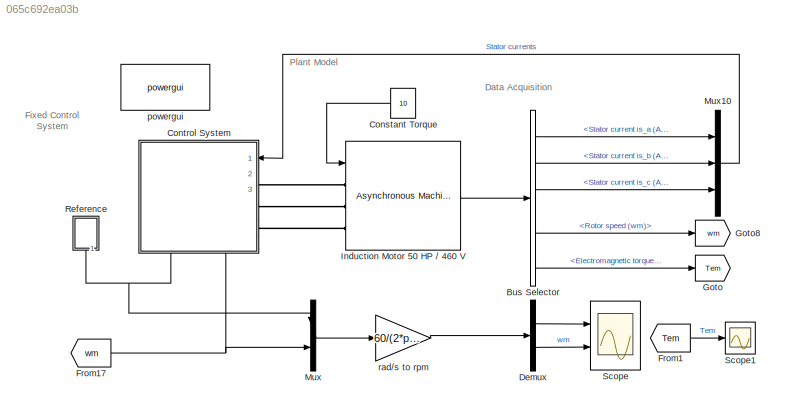
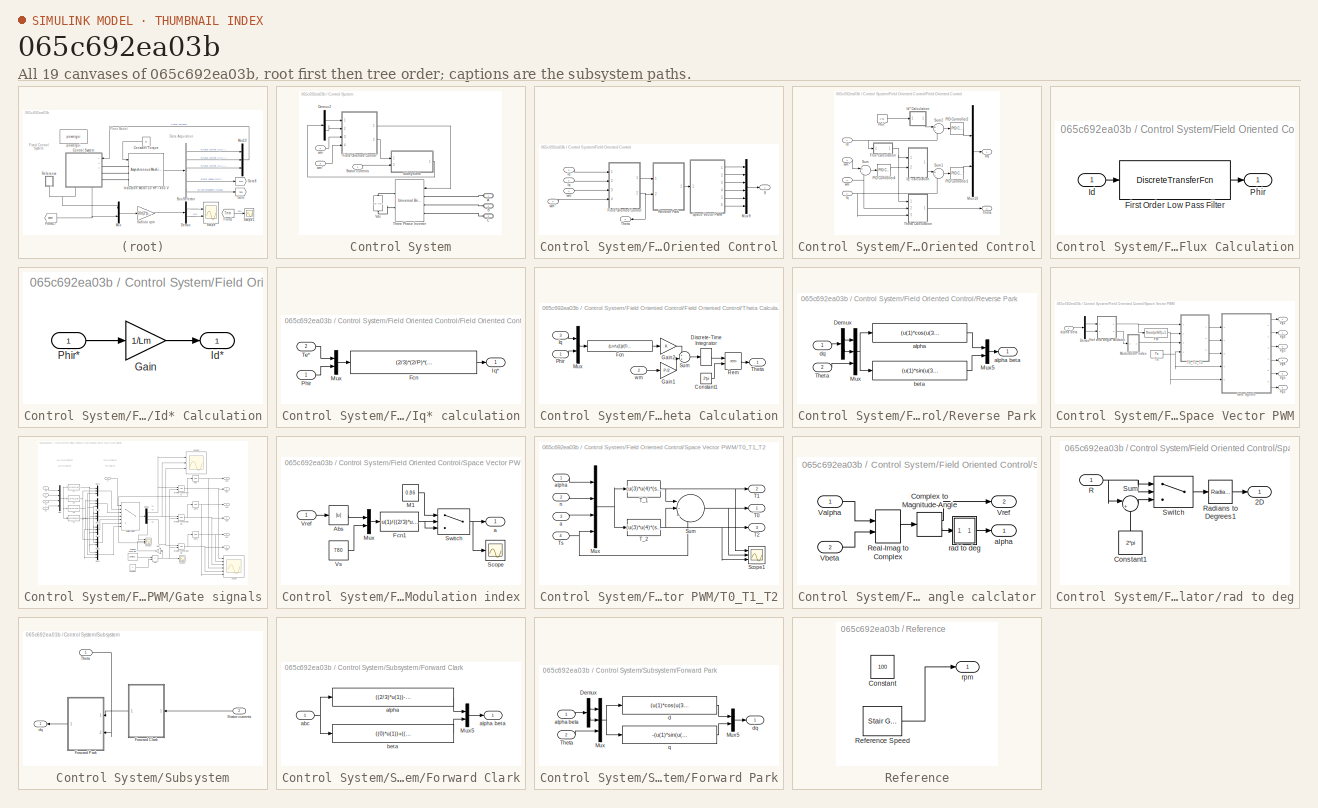
[diagram: thumbnail index - all 19 canvases of the model, root first then tree order]
MODEL slx_065c692ea03b
KIND model
CONFIG AbsTol = auto
CONFIG EnableMultiTasking = off
CONFIG FixedStep = auto
CONFIG InitFcn = Ts=0.00002;
CONFIG MaxStep = auto
CONFIG MinStep = auto
CONFIG RelTol = 1e-3
CONFIG SampleTimeConstraint = Unconstrained
CONFIG SolverName = FixedStepDiscrete
CONFIG StartTime = 0.0
CONFIG StopTime = 20
BLOCK [BusSelector] Bus Selector
  OutputSignals = Stator measurements.Stator current is_a (A),Stator measurements.Stator current is_b (A),Stator measurements.Stator current is_c (A),Mechanical.Rotor speed (wm),Mechanical.Electromagnetic torque Te (N*m)
  Ports = [1, 5]
BLOCK [Constant] Constant Torque
  Value = 10
BLOCK [SubSystem] Control System
  NameLocation = top
  PortSchema = {"entries":[{"content":{"sides":[{"content":{"connectorIds":["In1","LConn1","LConn2","LConn3"]},"type":"ConnectorPlacement.EquallySpacedRectSide","uuid":"4d0b9b2f-8e37-4bb7-83ab-892b613475e4"},{"content":{"connectorIds":[],"side":"RIGHT"},"type":"ConnectorPlacement.EquallySpacedRectSide","uuid":"bb2369a0-c7b6-4e92-ace2-61445e2cb3b9"},{"content":{"connectorIds":[],"side":"TOP"},"type":"ConnectorPla...<+416ch>
  Ports = [3, 0, 0, 0, 0, 3]
  RequestExecContextInheritance = off
BLOCK [PMIOPort] Control System/A
  Side = Left
BLOCK [PMIOPort] Control System/B
  Port = 2
  Side = Left
BLOCK [PMIOPort] Control System/C
  Port = 3
  Side = Left
BLOCK [Demux] Control System/Demux2
  NameLocation = top
  Outputs = 2
  Ports = [1, 2]
BLOCK [SubSystem] Control System/Field Oriented Control
  Ports = [4, 2]
  RequestExecContextInheritance = off
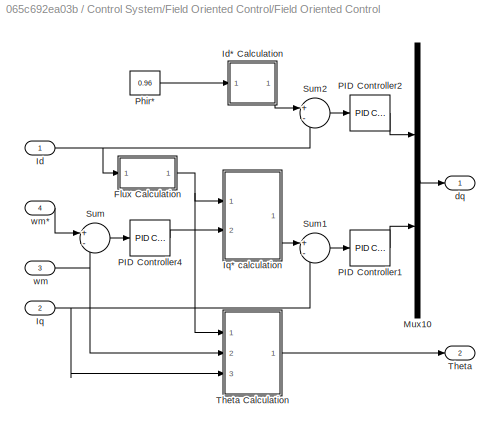
BLOCK [SubSystem] Control System/Field Oriented Control/Field Oriented Control
  Ports = [4, 2]
  RequestExecContextInheritance = off
BLOCK [SubSystem] Control System/Field Oriented Control/Field Oriented Control/Flux Calculation
  Ports = [1, 1]
  RequestExecContextInheritance = off
BLOCK [DiscreteTransferFcn] Control System/Field Oriented Control/Field Oriented Control/Flux Calculation/First Order Low Pass Filter
  Denominator = [1 (Ts-Tr)/Tr]
  InputPortMap = u0
  Numerator = [Lm*Ts/Tr]
  Ports = [1, 1]
BLOCK [Inport] Control System/Field Oriented Control/Field Oriented Control/Flux Calculation/Id
BLOCK [Outport] Control System/Field Oriented Control/Field Oriented Control/Flux Calculation/Phir
  VectorParamsAs1DForOutWhenUnconnected = off
BLOCK [Inport] Control System/Field Oriented Control/Field Oriented Control/Id
BLOCK [SubSystem] Control System/Field Oriented Control/Field Oriented Control/Id* Calculation
  Ports = [1, 1]
  RequestExecContextInheritance = off
BLOCK [Gain] Control System/Field Oriented Control/Field Oriented Control/Id* Calculation/Gain
  Gain = 1/Lm
  OutDataTypeStr = Inherit: Same as input
  ParamDataTypeStr = Inherit: Same as input
  SaturateOnIntegerOverflow = on
BLOCK [Outport] Control System/Field Oriented Control/Field Oriented Control/Id* Calculation/Id*
  VectorParamsAs1DForOutWhenUnconnected = off
BLOCK [Inport] Control System/Field Oriented Control/Field Oriented Control/Id* Calculation/Phir*
BLOCK [Inport] Control System/Field Oriented Control/Field Oriented Control/Iq
  Port = 2
BLOCK [SubSystem] Control System/Field Oriented Control/Field Oriented Control/Iq* calculation
  Ports = [2, 1]
  RequestExecContextInheritance = off
BLOCK [Fcn] Control System/Field Oriented Control/Field Oriented Control/Iq* calculation/Fcn
  Expr = (2/3)*(2/P)*((Llr+Lm)/Lm)*(u(1)/(u(2)+1e-3))
BLOCK [Outport] Control System/Field Oriented Control/Field Oriented Control/Iq* calculation/Iq*
  InitialOutput = 0
  VectorParamsAs1DForOutWhenUnconnected = off
BLOCK [Mux] Control System/Field Oriented Control/Field Oriented Control/Iq* calculation/Mux
  DisplayOption = bar
  Inputs = 2
  Ports = [2, 1]
BLOCK [Inport] Control System/Field Oriented Control/Field Oriented Control/Iq* calculation/Phir
BLOCK [Inport] Control System/Field Oriented Control/Field Oriented Control/Iq* calculation/Te*
  Port = 2
BLOCK [Mux] Control System/Field Oriented Control/Field Oriented Control/Mux10
  DisplayOption = bar
  Inputs = 2
  Ports = [2, 1]
BLOCK [Reference] Control System/Field Oriented Control/Field Oriented Control/PID Controller1  REF=slpidlib/PID Controller
  Ports = [1, 1]
  SourceBlock = slpidlib/PID Controller
  SourceProductBaseCode = SL
  SourceType = PID 1dof
BLOCK [Reference] Control System/Field Oriented Control/Field Oriented Control/PID Controller2  REF=slpidlib/PID Controller
  Ports = [1, 1]
  SourceBlock = slpidlib/PID Controller
  SourceProductBaseCode = SL
  SourceType = PID 1dof
BLOCK [Reference] Control System/Field Oriented Control/Field Oriented Control/PID Controller4  REF=slpidlib/PID Controller
  Ports = [1, 1]
  SourceBlock = slpidlib/PID Controller
  SourceProductBaseCode = SL
  SourceType = PID 1dof
BLOCK [Constant] Control System/Field Oriented Control/Field Oriented Control/Phir*
  Value = 0.96
BLOCK [Sum] Control System/Field Oriented Control/Field Oriented Control/Sum
  Inputs = +-
  Ports = [2, 1]
BLOCK [Sum] Control System/Field Oriented Control/Field Oriented Control/Sum1
  Inputs = +-
  Ports = [2, 1]
BLOCK [Sum] Control System/Field Oriented Control/Field Oriented Control/Sum2
  Inputs = +-
  Ports = [2, 1]
BLOCK [Outport] Control System/Field Oriented Control/Field Oriented Control/Theta
  Port = 2
  VectorParamsAs1DForOutWhenUnconnected = off
BLOCK [SubSystem] Control System/Field Oriented Control/Field Oriented Control/Theta Calculation
  Ports = [3, 1]
  RequestExecContextInheritance = off
BLOCK [Constant] Control System/Field Oriented Control/Field Oriented Control/Theta Calculation/Constant1
  Value = 2*pi
BLOCK [DiscreteIntegrator] Control System/Field Oriented Control/Field Oriented Control/Theta Calculation/Discrete-Time Integrator
  ICPrevOutput = DiscIntNeverNeededParam
  ICPrevScaledInput = DiscIntNeverNeededParam
  Ports = [1, 1]
  SampleTime = Ts
BLOCK [Fcn] Control System/Field Oriented Control/Field Oriented Control/Theta Calculation/Fcn
  Expr = (Lm*u(1))/(Tr*(u(2)+1e-3))
BLOCK [Gain] Control System/Field Oriented Control/Field Oriented Control/Theta Calculation/Gain1
  Gain = P/2
  OutDataTypeStr = Inherit: Same as input
  ParamDataTypeStr = Inherit: Same as input
  SaturateOnIntegerOverflow = on
BLOCK [Gain] Control System/Field Oriented Control/Field Oriented Control/Theta Calculation/Gain2
  OutDataTypeStr = Inherit: Same as input
  ParamDataTypeStr = Inherit: Same as input
  SaturateOnIntegerOverflow = on
BLOCK [Inport] Control System/Field Oriented Control/Field Oriented Control/Theta Calculation/Iq
  Port = 3
BLOCK [Mux] Control System/Field Oriented Control/Field Oriented Control/Theta Calculation/Mux
  DisplayOption = bar
  Inputs = 2
  Ports = [2, 1]
BLOCK [Inport] Control System/Field Oriented Control/Field Oriented Control/Theta Calculation/Phir
BLOCK [Math] Control System/Field Oriented Control/Field Oriented Control/Theta Calculation/Rem
  Operator = rem
  Ports = [2, 1]
  SignedPower = on
BLOCK [Sum] Control System/Field Oriented Control/Field Oriented Control/Theta Calculation/Sum
  Ports = [2, 1]
BLOCK [Outport] Control System/Field Oriented Control/Field Oriented Control/Theta Calculation/Theta
  InitialOutput = 0
  VectorParamsAs1DForOutWhenUnconnected = off
BLOCK [Inport] Control System/Field Oriented Control/Field Oriented Control/Theta Calculation/wm
  Port = 2
BLOCK [Outport] Control System/Field Oriented Control/Field Oriented Control/dq
  VectorParamsAs1DForOutWhenUnconnected = off
BLOCK [Inport] Control System/Field Oriented Control/Field Oriented Control/wm
  Port = 3
BLOCK [Inport] Control System/Field Oriented Control/Field Oriented Control/wm*
  Port = 4
BLOCK [Inport] Control System/Field Oriented Control/Id
BLOCK [Inport] Control System/Field Oriented Control/Iq
  Port = 2
BLOCK [Mux] Control System/Field Oriented Control/Mux9
  DisplayOption = bar
  Inputs = 6
  Ports = [6, 1]
BLOCK [SubSystem] Control System/Field Oriented Control/Reverse Park
  Ports = [2, 1]
  RequestExecContextInheritance = off
BLOCK [Demux] Control System/Field Oriented Control/Reverse Park/Demux
  Outputs = 2
  Ports = [1, 2]
BLOCK [Mux] Control System/Field Oriented Control/Reverse Park/Mux
  DisplayOption = bar
  Inputs = 3
  Ports = [3, 1]
BLOCK [Mux] Control System/Field Oriented Control/Reverse Park/Mux5
  DisplayOption = bar
  Inputs = 2
  Ports = [2, 1]
BLOCK [Inport] Control System/Field Oriented Control/Reverse Park/Theta
  Port = 2
BLOCK [Fcn] Control System/Field Oriented Control/Reverse Park/alpha
  Expr = (u(1)*cos(u(3)))-(u(2)*sin(u(3)))
BLOCK [Outport] Control System/Field Oriented Control/Reverse Park/alpha beta
  VectorParamsAs1DForOutWhenUnconnected = off
BLOCK [Fcn] Control System/Field Oriented Control/Reverse Park/beta
  Expr = (u(1)*sin(u(3)))+(u(2)*cos(u(3)))
BLOCK [Inport] Control System/Field Oriented Control/Reverse Park/dq
BLOCK [SubSystem] Control System/Field Oriented Control/Space Vector PWM
  Ports = [1, 6]
  RequestExecContextInheritance = off
BLOCK [Demux] Control System/Field Oriented Control/Space Vector PWM/Demux
  Outputs = 2
  Ports = [1, 2]
BLOCK [Fcn] Control System/Field Oriented Control/Space Vector PWM/Fcn
  Expr = floor(u/60)+1
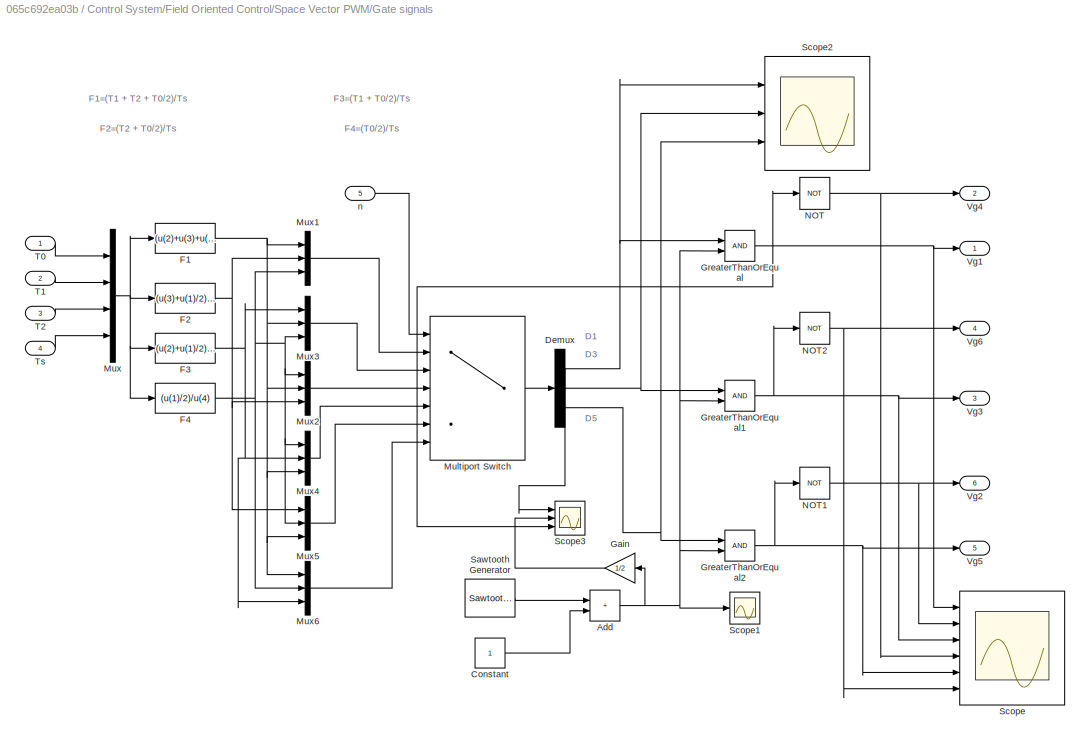
BLOCK [SubSystem] Control System/Field Oriented Control/Space Vector PWM/Gate signals
  Ports = [5, 6]
  RequestExecContextInheritance = off
BLOCK [Sum] Control System/Field Oriented Control/Space Vector PWM/Gate signals/Add
  IconShape = rectangular
  Ports = [2, 1]
BLOCK [Constant] Control System/Field Oriented Control/Space Vector PWM/Gate signals/Constant
BLOCK [Demux] Control System/Field Oriented Control/Space Vector PWM/Gate signals/Demux
  Outputs = 3
  Ports = [1, 3]
BLOCK [Fcn] Control System/Field Oriented Control/Space Vector PWM/Gate signals/F1
  Expr = (u(2)+u(3)+u(1)/2)/u(4)
BLOCK [Fcn] Control System/Field Oriented Control/Space Vector PWM/Gate signals/F2
  Expr = (u(3)+u(1)/2)/u(4)
BLOCK [Fcn] Control System/Field Oriented Control/Space Vector PWM/Gate signals/F3
  Expr = (u(2)+u(1)/2)/u(4)
BLOCK [Fcn] Control System/Field Oriented Control/Space Vector PWM/Gate signals/F4
  Expr = (u(1)/2)/u(4)
BLOCK [Gain] Control System/Field Oriented Control/Space Vector PWM/Gate signals/Gain
  Gain = 1/2
  NameLocation = top
BLOCK [RelationalOperator] Control System/Field Oriented Control/Space Vector PWM/Gate signals/GreaterThanOrEqual
  InputSameDT = off
  OutDataTypeStr = boolean
  Ports = [2, 1]
  RndMeth = Simplest
BLOCK [RelationalOperator] Control System/Field Oriented Control/Space Vector PWM/Gate signals/GreaterThanOrEqual1
  InputSameDT = off
  OutDataTypeStr = boolean
  Ports = [2, 1]
  RndMeth = Simplest
BLOCK [RelationalOperator] Control System/Field Oriented Control/Space Vector PWM/Gate signals/GreaterThanOrEqual2
  InputSameDT = off
  OutDataTypeStr = boolean
  Ports = [2, 1]
  RndMeth = Simplest
BLOCK [MultiPortSwitch] Control System/Field Oriented Control/Space Vector PWM/Gate signals/Multiport Switch
  DiagnosticForDefault = None
  InputSameDT = off
  Inputs = 6
  Ports = [7, 1]
  SaturateOnIntegerOverflow = off
BLOCK [Mux] Control System/Field Oriented Control/Space Vector PWM/Gate signals/Mux
  DisplayOption = bar
  Ports = [4, 1]
BLOCK [Mux] Control System/Field Oriented Control/Space Vector PWM/Gate signals/Mux1
  DisplayOption = bar
  Inputs = 3
  Ports = [3, 1]
BLOCK [Mux] Control System/Field Oriented Control/Space Vector PWM/Gate signals/Mux2
  DisplayOption = bar
  Inputs = 3
  Ports = [3, 1]
BLOCK [Mux] Control System/Field Oriented Control/Space Vector PWM/Gate signals/Mux3
  DisplayOption = bar
  Inputs = 3
  Ports = [3, 1]
BLOCK [Mux] Control System/Field Oriented Control/Space Vector PWM/Gate signals/Mux4
  DisplayOption = bar
  Inputs = 3
  Ports = [3, 1]
BLOCK [Mux] Control System/Field Oriented Control/Space Vector PWM/Gate signals/Mux5
  DisplayOption = bar
  Inputs = 3
  Ports = [3, 1]
BLOCK [Mux] Control System/Field Oriented Control/Space Vector PWM/Gate signals/Mux6
  DisplayOption = bar
  Inputs = 3
  Ports = [3, 1]
BLOCK [Logic] Control System/Field Oriented Control/Space Vector PWM/Gate signals/NOT
  AllPortsSameDT = off
  IconShape = distinctive
  Operator = NOT
  OutDataTypeStr = boolean
  Ports = [1, 1]
BLOCK [Logic] Control System/Field Oriented Control/Space Vector PWM/Gate signals/NOT1
  AllPortsSameDT = off
  IconShape = distinctive
  Operator = NOT
  OutDataTypeStr = boolean
  Ports = [1, 1]
BLOCK [Logic] Control System/Field Oriented Control/Space Vector PWM/Gate signals/NOT2
  AllPortsSameDT = off
  IconShape = distinctive
  Operator = NOT
  OutDataTypeStr = boolean
  Ports = [1, 1]
BLOCK [Reference] Control System/Field Oriented Control/Space Vector PWM/Gate signals/Sawtooth Generator  REF=spsSawtoothGeneratorLib/Sawtooth
Generator
  Ports = [0, 1]
  SourceBlock = spsSawtoothGeneratorLib/Sawtooth\nGenerator
  SourceProductBaseCode = PS
  SourceType = Sawtooth Generator
BLOCK [Scope] Control System/Field Oriented Control/Space Vector PWM/Gate signals/Scope
  Floating = off
  NumInputPorts = 6
  Ports = [6]
  ScopeSpecificationString = Simulink.scopes.TimeScopeBlockCfg('CurrentConfiguration', extmgr.ConfigurationSet(extmgr.Configuration('Core','General UI',true),extmgr.Configuration('Core','Source UI',true),extmgr.Configuration('Sources','WiredSimulink',true,'DataLoggingVariableName','ScopeData1'),extmgr.Configuration('Visuals','Time Domain',true,'SerializedDisplays',{struct('MinYLimReal','-0.125','MaxYLimReal','1.03051','YLabel...<+5030ch>
BLOCK [Scope] Control System/Field Oriented Control/Space Vector PWM/Gate signals/Scope1
  Floating = off
  NumInputPorts = 1
  Ports = [1]
  ScopeSpecificationString = Simulink.scopes.TimeScopeBlockCfg('CurrentConfiguration', extmgr.ConfigurationSet(extmgr.Configuration('Core','General UI',true),extmgr.Configuration('Core','Source UI',true),extmgr.Configuration('Sources','WiredSimulink',true,'DataLoggingVariableName','ScopeData1'),extmgr.Configuration('Visuals','Time Domain',true,'SerializedDisplays',{struct('MinYLimReal','-0.1022','MaxYLimReal','2.0514','YLabel...<+1402ch>
BLOCK [Scope] Control System/Field Oriented Control/Space Vector PWM/Gate signals/Scope2
  Floating = off
  NumInputPorts = 3
  Ports = [3]
  ScopeSpecificationString = Simulink.scopes.TimeScopeBlockCfg('CurrentConfiguration', extmgr.ConfigurationSet(extmgr.Configuration('Core','General UI',true),extmgr.Configuration('Core','Source UI',true),extmgr.Configuration('Sources','WiredSimulink',true,'DataLoggingVariableName','ScopeData1'),extmgr.Configuration('Visuals','Time Domain',true,'SerializedDisplays',{struct('MinYLimReal','-0.12489','MaxYLimReal','1.12482','YLab...<+2919ch>
BLOCK [Scope] Control System/Field Oriented Control/Space Vector PWM/Gate signals/Scope3
  Floating = off
  NumInputPorts = 3
  Ports = [3]
  ScopeSpecificationString = Simulink.scopes.TimeScopeBlockCfg('CurrentConfiguration', extmgr.ConfigurationSet(extmgr.Configuration('Core','General UI',true),extmgr.Configuration('Core','Source UI',true),extmgr.Configuration('Sources','WiredSimulink',true,'DataLoggingVariableName','ScopeData1'),extmgr.Configuration('Visuals','Time Domain',true,'SerializedDisplays',{struct('MinYLimReal','-0.04819','MaxYLimReal','1.01031','YLab...<+1531ch>
BLOCK [Inport] Control System/Field Oriented Control/Space Vector PWM/Gate signals/T0
BLOCK [Inport] Control System/Field Oriented Control/Space Vector PWM/Gate signals/T1
  Port = 2
BLOCK [Inport] Control System/Field Oriented Control/Space Vector PWM/Gate signals/T2
  Port = 3
BLOCK [Inport] Control System/Field Oriented Control/Space Vector PWM/Gate signals/Ts
  Port = 4
BLOCK [Outport] Control System/Field Oriented Control/Space Vector PWM/Gate signals/Vg1
  VectorParamsAs1DForOutWhenUnconnected = off
BLOCK [Outport] Control System/Field Oriented Control/Space Vector PWM/Gate signals/Vg2
  Port = 6
  VectorParamsAs1DForOutWhenUnconnected = off
BLOCK [Outport] Control System/Field Oriented Control/Space Vector PWM/Gate signals/Vg3
  Port = 3
  VectorParamsAs1DForOutWhenUnconnected = off
BLOCK [Outport] Control System/Field Oriented Control/Space Vector PWM/Gate signals/Vg4
  Port = 2
  VectorParamsAs1DForOutWhenUnconnected = off
BLOCK [Outport] Control System/Field Oriented Control/Space Vector PWM/Gate signals/Vg5
  Port = 5
  VectorParamsAs1DForOutWhenUnconnected = off
BLOCK [Outport] Control System/Field Oriented Control/Space Vector PWM/Gate signals/Vg6
  Port = 4
  VectorParamsAs1DForOutWhenUnconnected = off
BLOCK [Inport] Control System/Field Oriented Control/Space Vector PWM/Gate signals/n
  Port = 5
BLOCK [SubSystem] Control System/Field Oriented Control/Space Vector PWM/Modulation index
  Ports = [1, 1]
  RequestExecContextInheritance = off
BLOCK [Abs] Control System/Field Oriented Control/Space Vector PWM/Modulation index/Abs
  SaturateOnIntegerOverflow = off
BLOCK [Fcn] Control System/Field Oriented Control/Space Vector PWM/Modulation index/Fcn1
  Expr = u(1)/((2/3)*u(2))
BLOCK [Constant] Control System/Field Oriented Control/Space Vector PWM/Modulation index/M1
  Value = 0.86
BLOCK [Mux] Control System/Field Oriented Control/Space Vector PWM/Modulation index/Mux
  DisplayOption = bar
  Inputs = 2
  Ports = [2, 1]
BLOCK [Scope] Control System/Field Oriented Control/Space Vector PWM/Modulation index/Scope
  Floating = off
  NumInputPorts = 1
  Ports = [1]
  ScopeSpecificationString = Simulink.scopes.TimeScopeBlockCfg('CurrentConfiguration', extmgr.ConfigurationSet(extmgr.Configuration('Core','General UI',true),extmgr.Configuration('Core','Source UI',true),extmgr.Configuration('Sources','WiredSimulink',true,'DataLoggingVariableName','ScopeData7'),extmgr.Configuration('Visuals','Time Domain',true,'SerializedDisplays',{struct('MinYLimReal','0.86504','MaxYLimReal','0.86623','YLabe...<+1409ch>
BLOCK [Switch] Control System/Field Oriented Control/Space Vector PWM/Modulation index/Switch
  InputSameDT = off
  SaturateOnIntegerOverflow = off
  Threshold = 0.866
BLOCK [Inport] Control System/Field Oriented Control/Space Vector PWM/Modulation index/Vref
BLOCK [Constant] Control System/Field Oriented Control/Space Vector PWM/Modulation index/Vs
  Value = 780
BLOCK [Outport] Control System/Field Oriented Control/Space Vector PWM/Modulation index/a
  VectorParamsAs1DForOutWhenUnconnected = off
BLOCK [SubSystem] Control System/Field Oriented Control/Space Vector PWM/T0_T1_T2
  Ports = [4, 3]
  RequestExecContextInheritance = off
BLOCK [Mux] Control System/Field Oriented Control/Space Vector PWM/T0_T1_T2/Mux
  DisplayOption = bar
  Ports = [4, 1]
BLOCK [Scope] Control System/Field Oriented Control/Space Vector PWM/T0_T1_T2/Scope1
  Floating = off
  NumInputPorts = 3
  Ports = [3]
  ScopeSpecificationString = Simulink.scopes.TimeScopeBlockCfg('CurrentConfiguration', extmgr.ConfigurationSet(extmgr.Configuration('Core','General UI',true),extmgr.Configuration('Core','Source UI',true),extmgr.Configuration('Sources','WiredSimulink',true,'DataLoggingVariableName','ScopeData2'),extmgr.Configuration('Visuals','Time Domain',true,'SerializedDisplays',{struct('MinYLimReal','-0.0000002','MaxYLimReal','0.0000022','...<+1956ch>
BLOCK [Sum] Control System/Field Oriented Control/Space Vector PWM/T0_T1_T2/Sum
  Inputs = |--+
  Ports = [3, 1]
BLOCK [Outport] Control System/Field Oriented Control/Space Vector PWM/T0_T1_T2/T0
  VectorParamsAs1DForOutWhenUnconnected = off
BLOCK [Outport] Control System/Field Oriented Control/Space Vector PWM/T0_T1_T2/T1
  Port = 2
  VectorParamsAs1DForOutWhenUnconnected = off
BLOCK [Outport] Control System/Field Oriented Control/Space Vector PWM/T0_T1_T2/T2
  Port = 3
  VectorParamsAs1DForOutWhenUnconnected = off
BLOCK [Fcn] Control System/Field Oriented Control/Space Vector PWM/T0_T1_T2/T_1
  Expr = (u(3)*u(4)*(sin((u(2)*pi/3)-u(1)*pi/180)))/(sin(pi/3))
BLOCK [Fcn] Control System/Field Oriented Control/Space Vector PWM/T0_T1_T2/T_2
  Expr = (u(3)*u(4)*(sin(u(1)*pi/180-((u(2)-1)*pi/3))))/(sin(pi/3))
BLOCK [Inport] Control System/Field Oriented Control/Space Vector PWM/T0_T1_T2/Ts
  Port = 4
BLOCK [Inport] Control System/Field Oriented Control/Space Vector PWM/T0_T1_T2/a
  Port = 3
BLOCK [Inport] Control System/Field Oriented Control/Space Vector PWM/T0_T1_T2/alpha
BLOCK [Inport] Control System/Field Oriented Control/Space Vector PWM/T0_T1_T2/n
  Port = 2
BLOCK [Constant] Control System/Field Oriented Control/Space Vector PWM/Ts
  Value = Ts
BLOCK [Outport] Control System/Field Oriented Control/Space Vector PWM/Vg1
  VectorParamsAs1DForOutWhenUnconnected = off
BLOCK [Outport] Control System/Field Oriented Control/Space Vector PWM/Vg2
  Port = 6
  VectorParamsAs1DForOutWhenUnconnected = off
BLOCK [Outport] Control System/Field Oriented Control/Space Vector PWM/Vg3
  Port = 3
  VectorParamsAs1DForOutWhenUnconnected = off
BLOCK [Outport] Control System/Field Oriented Control/Space Vector PWM/Vg4
  Port = 2
  VectorParamsAs1DForOutWhenUnconnected = off
BLOCK [Outport] Control System/Field Oriented Control/Space Vector PWM/Vg5
  Port = 5
  VectorParamsAs1DForOutWhenUnconnected = off
BLOCK [Outport] Control System/Field Oriented Control/Space Vector PWM/Vg6
  Port = 4
  VectorParamsAs1DForOutWhenUnconnected = off
BLOCK [SubSystem] Control System/Field Oriented Control/Space Vector PWM/Vref and angle calclator
  Ports = [2, 2]
  RequestExecContextInheritance = off
BLOCK [ComplexToMagnitudeAngle] Control System/Field Oriented Control/Space Vector PWM/Vref and angle calclator/Complex to Magnitude-Angle
  Ports = [1, 2]
BLOCK [RealImagToComplex] Control System/Field Oriented Control/Space Vector PWM/Vref and angle calclator/Real-Imag to Complex
  Ports = [2, 1]
BLOCK [Inport] Control System/Field Oriented Control/Space Vector PWM/Vref and angle calclator/Valpha
BLOCK [Inport] Control System/Field Oriented Control/Space Vector PWM/Vref and angle calclator/Vbeta
  Port = 2
BLOCK [Outport] Control System/Field Oriented Control/Space Vector PWM/Vref and angle calclator/Vref
  Port = 2
  VectorParamsAs1DForOutWhenUnconnected = off
BLOCK [Outport] Control System/Field Oriented Control/Space Vector PWM/Vref and angle calclator/alpha
  VectorParamsAs1DForOutWhenUnconnected = off
BLOCK [SubSystem] Control System/Field Oriented Control/Space Vector PWM/Vref and angle calclator/rad to deg
  Ports = [1, 1]
  RequestExecContextInheritance = off
BLOCK [Outport] Control System/Field Oriented Control/Space Vector PWM/Vref and angle calclator/rad to deg/2D
  VectorParamsAs1DForOutWhenUnconnected = off
BLOCK [Constant] Control System/Field Oriented Control/Space Vector PWM/Vref and angle calclator/rad to deg/Constant1
  NameLocation = right
  Value = 2*pi
BLOCK [Inport] Control System/Field Oriented Control/Space Vector PWM/Vref and angle calclator/rad to deg/R
BLOCK [Reference] Control System/Field Oriented Control/Space Vector PWM/Vref and angle calclator/rad to deg/Radians to Degrees1  REF=simulink_extras/Transformations/Radians
to Degrees
  Ports = [1, 1]
  SourceBlock = simulink_extras/Transformations/Radians\nto Degrees
  SourceProductBaseCode = SL
  SourceType = RadiansToDegrees
BLOCK [Sum] Control System/Field Oriented Control/Space Vector PWM/Vref and angle calclator/rad to deg/Sum
  Inputs = |++
  Ports = [2, 1]
BLOCK [Switch] Control System/Field Oriented Control/Space Vector PWM/Vref and angle calclator/rad to deg/Switch
  InputSameDT = off
  SaturateOnIntegerOverflow = off
BLOCK [Inport] Control System/Field Oriented Control/Space Vector PWM/alpha beta
BLOCK [Outport] Control System/Field Oriented Control/Theta
  Port = 2
BLOCK [Outport] Control System/Field Oriented Control/g
  NameLocation = top
BLOCK [Inport] Control System/Field Oriented Control/wm
  Port = 3
BLOCK [Inport] Control System/Field Oriented Control/wm*
  Port = 4
BLOCK [Inport] Control System/Stator currents
BLOCK [SubSystem] Control System/Subsystem
  Ports = [2, 1]
  RequestExecContextInheritance = off
BLOCK [SubSystem] Control System/Subsystem/Forward Clark
  Ports = [1, 1]
  RequestExecContextInheritance = off
BLOCK [Mux] Control System/Subsystem/Forward Clark/Mux5
  DisplayOption = bar
  Inputs = 2
  Ports = [2, 1]
BLOCK [Inport] Control System/Subsystem/Forward Clark/abc
BLOCK [Fcn] Control System/Subsystem/Forward Clark/alpha
  Expr = ((2/3)*u(1))-((1/3)*u(2))-((1/3)*u(3))
BLOCK [Outport] Control System/Subsystem/Forward Clark/alpha beta
  VectorParamsAs1DForOutWhenUnconnected = off
BLOCK [Fcn] Control System/Subsystem/Forward Clark/beta
  Expr = ((0)*u(1))+((1/sqrt(3))*u(2))-((1/sqrt(3))*u(3))
BLOCK [SubSystem] Control System/Subsystem/Forward Park
  Ports = [2, 1]
  RequestExecContextInheritance = off
BLOCK [Demux] Control System/Subsystem/Forward Park/Demux
  Outputs = 2
  Ports = [1, 2]
BLOCK [Mux] Control System/Subsystem/Forward Park/Mux
  DisplayOption = bar
  Inputs = 3
  Ports = [3, 1]
BLOCK [Mux] Control System/Subsystem/Forward Park/Mux5
  DisplayOption = bar
  Inputs = 2
  Ports = [2, 1]
BLOCK [Inport] Control System/Subsystem/Forward Park/Theta
  Port = 2
BLOCK [Inport] Control System/Subsystem/Forward Park/alpha beta
BLOCK [Fcn] Control System/Subsystem/Forward Park/d
  Expr = (u(1)*cos(u(3)))+(u(2)*sin(u(3)))
BLOCK [Outport] Control System/Subsystem/Forward Park/dq
  VectorParamsAs1DForOutWhenUnconnected = off
BLOCK [Fcn] Control System/Subsystem/Forward Park/q
  Expr = -(u(1)*sin(u(3)))+(u(2)*cos(u(3)))
BLOCK [Inport] Control System/Subsystem/Stator currents
  Port = 2
BLOCK [Inport] Control System/Subsystem/Theta
BLOCK [Outport] Control System/Subsystem/dq
BLOCK [Reference] Control System/Three Phase Inverter  REF=spsUniversalBridgeLib/Universal Bridge
  AttributesFormatString = \n
  Ports = [1, 0, 0, 0, 0, 3, 2]
  SourceBlock = spsUniversalBridgeLib/Universal Bridge
  SourceProductBaseCode = PS
  SourceType = Universal Bridge
BLOCK [Reference] Control System/Vdc  REF=spsDCVoltageSourceLib/DC Voltage Source
  AttributesFormatString = \n
  Description = source block
  NameLocation = left
  Ports = [0, 0, 0, 0, 0, 1, 1]
  SourceBlock = spsDCVoltageSourceLib/DC Voltage Source
  SourceProductBaseCode = PS
  SourceType = DC Voltage Source
BLOCK [Inport] Control System/wm
  Port = 2
BLOCK [Inport] Control System/wm*
  Port = 3
BLOCK [Demux] Demux
  Outputs = 2
  Ports = [1, 2]
BLOCK [From] From1
  GotoTag = Tem
  TagVisibility = global
BLOCK [From] From17
  GotoTag = wm
  TagVisibility = global
BLOCK [Goto] Goto
  GotoTag = Tem
  TagVisibility = global
BLOCK [Goto] Goto8
  GotoTag = wm
  TagVisibility = global
BLOCK [Reference] Induction Motor 50 HP // 460 V  REF=spsAsynchronousMachineSIUnitsLib/Asynchronous Machine
SI Units
  AttributesFormatString = \n
  Ports = [1, 1, 0, 0, 0, 3]
  SourceBlock = spsAsynchronousMachineSIUnitsLib/Asynchronous Machine\nSI Units
  SourceProductBaseCode = PS
  SourceType = Asynchronous Machine
BLOCK [Mux] Mux
  DisplayOption = bar
  Inputs = 2
  Ports = [2, 1]
BLOCK [Mux] Mux10
  DisplayOption = bar
  Inputs = 3
  Ports = [3, 1]
BLOCK [SubSystem] Reference
  NameLocation = top
  Ports = [0, 1]
  RequestExecContextInheritance = off
BLOCK [Constant] Reference/Constant
  Commented = on
  Value = 100
BLOCK [Reference] Reference/Reference Speed  REF=spsStairGeneratorLib/Stair
Generator
  Ports = [0, 1]
  SourceBlock = spsStairGeneratorLib/Stair\nGenerator
  SourceProductBaseCode = PS
  SourceType = Stair Generator
BLOCK [Outport] Reference/rpm
BLOCK [Scope] Scope
  Floating = off
  NumInputPorts = 2
  Ports = [2]
  ScopeSpecificationString = Simulink.scopes.TimeScopeBlockCfg('CurrentConfiguration', extmgr.ConfigurationSet(extmgr.Configuration('Core','General UI',true),extmgr.Configuration('Core','Source UI',true),extmgr.Configuration('Sources','WiredSimulink',true,'DataLoggingVariableName','ScopeData1'),extmgr.Configuration('Visuals','Time Domain',true,'SerializedDisplays',{struct('MinYLimReal','-125.77717','MaxYLimReal','1131.99449',...<+1856ch>
BLOCK [Scope] Scope1
  Floating = off
  NumInputPorts = 1
  Ports = [1]
  ScopeSpecificationString = Simulink.scopes.TimeScopeBlockCfg('CurrentConfiguration', extmgr.ConfigurationSet(extmgr.Configuration('Core','General UI',true),extmgr.Configuration('Core','Source UI',true),extmgr.Configuration('Sources','WiredSimulink',true,'DataLoggingVariableName','ScopeData1'),extmgr.Configuration('Visuals','Time Domain',true,'SerializedDisplays',{struct('MinYLimReal','-119.84286','MaxYLimReal','526.61593','...<+1376ch>
BLOCK [Reference] powergui  REF=spspowerguiLib/powergui
  NameLocation = top
  Ports = []
  Priority = 2
  SourceBlock = spspowerguiLib/powergui
  SourceProductBaseCode = PS
  SourceType = PSB option menu block
BLOCK [Gain] rad//s to rpm
  Gain = 60/(2*pi)
  NameLocation = top
ANNOTATION (root): Data Acquisition
ANNOTATION (root): Fixed Control System
ANNOTATION (root): Plant Model
ANNOTATION Control System/Field Oriented Control/Space Vector PWM/Gate signals: D1
ANNOTATION Control System/Field Oriented Control/Space Vector PWM/Gate signals: D3
ANNOTATION Control System/Field Oriented Control/Space Vector PWM/Gate signals: D5
ANNOTATION Control System/Field Oriented Control/Space Vector PWM/Gate signals: F1=(T1 + T2 + T0/2)/Ts
ANNOTATION Control System/Field Oriented Control/Space Vector PWM/Gate signals: F2=(T2 + T0/2)/Ts
ANNOTATION Control System/Field Oriented Control/Space Vector PWM/Gate signals: F3=(T1 + T0/2)/Ts
ANNOTATION Control System/Field Oriented Control/Space Vector PWM/Gate signals: F4=(T0/2)/Ts
LINE Bus Selector:1 -> Mux10:1
LINE Bus Selector:2 -> Mux10:2
LINE Bus Selector:3 -> Mux10:3
LINE Bus Selector:4 -> Goto8:1
LINE Bus Selector:5 -> Goto:1
LINE Constant Torque:1 -> Induction Motor 50 HP // 460 V:1
LINE Control System/Demux2:1 -> Control System/Field Oriented Control:1
LINE Control System/Demux2:2 -> Control System/Field Oriented Control:2
LINE Control System/Field Oriented Control/Field Oriented Control/Flux Calculation/First Order Low Pass Filter:1 -> Control System/Field Oriented Control/Field Oriented Control/Flux Calculation/Phir:1
LINE Control System/Field Oriented Control/Field Oriented Control/Flux Calculation/Id:1 -> Control System/Field Oriented Control/Field Oriented Control/Flux Calculation/First Order Low Pass Filter:1
NET Control System/Field Oriented Control/Field Oriented Control/Flux Calculation:1 -> Control System/Field Oriented Control/Field Oriented Control/Iq* calculation:1, Control System/Field Oriented Control/Field Oriented Control/Theta Calculation:1
LINE Control System/Field Oriented Control/Field Oriented Control/Id* Calculation/Gain:1 -> Control System/Field Oriented Control/Field Oriented Control/Id* Calculation/Id*:1
LINE Control System/Field Oriented Control/Field Oriented Control/Id* Calculation/Phir*:1 -> Control System/Field Oriented Control/Field Oriented Control/Id* Calculation/Gain:1
LINE Control System/Field Oriented Control/Field Oriented Control/Id* Calculation:1 -> Control System/Field Oriented Control/Field Oriented Control/Sum2:1
NET Control System/Field Oriented Control/Field Oriented Control/Id:1 -> Control System/Field Oriented Control/Field Oriented Control/Flux Calculation:1, Control System/Field Oriented Control/Field Oriented Control/Sum2:2
LINE Control System/Field Oriented Control/Field Oriented Control/Iq* calculation/Fcn:1 -> Control System/Field Oriented Control/Field Oriented Control/Iq* calculation/Iq*:1
LINE Control System/Field Oriented Control/Field Oriented Control/Iq* calculation/Mux:1 -> Control System/Field Oriented Control/Field Oriented Control/Iq* calculation/Fcn:1
LINE Control System/Field Oriented Control/Field Oriented Control/Iq* calculation/Phir:1 -> Control System/Field Oriented Control/Field Oriented Control/Iq* calculation/Mux:2
LINE Control System/Field Oriented Control/Field Oriented Control/Iq* calculation/Te*:1 -> Control System/Field Oriented Control/Field Oriented Control/Iq* calculation/Mux:1
LINE Control System/Field Oriented Control/Field Oriented Control/Iq* calculation:1 -> Control System/Field Oriented Control/Field Oriented Control/Sum1:1
NET Control System/Field Oriented Control/Field Oriented Control/Iq:1 -> Control System/Field Oriented Control/Field Oriented Control/Sum1:2, Control System/Field Oriented Control/Field Oriented Control/Theta Calculation:3
LINE Control System/Field Oriented Control/Field Oriented Control/Mux10:1 -> Control System/Field Oriented Control/Field Oriented Control/dq:1
LINE Control System/Field Oriented Control/Field Oriented Control/PID Controller1:1 -> Control System/Field Oriented Control/Field Oriented Control/Mux10:2
LINE Control System/Field Oriented Control/Field Oriented Control/PID Controller2:1 -> Control System/Field Oriented Control/Field Oriented Control/Mux10:1
LINE Control System/Field Oriented Control/Field Oriented Control/PID Controller4:1 -> Control System/Field Oriented Control/Field Oriented Control/Iq* calculation:2
LINE Control System/Field Oriented Control/Field Oriented Control/Phir*:1 -> Control System/Field Oriented Control/Field Oriented Control/Id* Calculation:1
LINE Control System/Field Oriented Control/Field Oriented Control/Sum1:1 -> Control System/Field Oriented Control/Field Oriented Control/PID Controller1:1
LINE Control System/Field Oriented Control/Field Oriented Control/Sum2:1 -> Control System/Field Oriented Control/Field Oriented Control/PID Controller2:1
LINE Control System/Field Oriented Control/Field Oriented Control/Sum:1 -> Control System/Field Oriented Control/Field Oriented Control/PID Controller4:1
LINE Control System/Field Oriented Control/Field Oriented Control/Theta Calculation/Constant1:1 -> Control System/Field Oriented Control/Field Oriented Control/Theta Calculation/Rem:2
LINE Control System/Field Oriented Control/Field Oriented Control/Theta Calculation/Discrete-Time Integrator:1 -> Control System/Field Oriented Control/Field Oriented Control/Theta Calculation/Rem:1
LINE Control System/Field Oriented Control/Field Oriented Control/Theta Calculation/Fcn:1 -> Control System/Field Oriented Control/Field Oriented Control/Theta Calculation/Gain2:1
LINE Control System/Field Oriented Control/Field Oriented Control/Theta Calculation/Gain1:1 -> Control System/Field Oriented Control/Field Oriented Control/Theta Calculation/Sum:2
LINE Control System/Field Oriented Control/Field Oriented Control/Theta Calculation/Gain2:1 -> Control System/Field Oriented Control/Field Oriented Control/Theta Calculation/Sum:1
LINE Control System/Field Oriented Control/Field Oriented Control/Theta Calculation/Iq:1 -> Control System/Field Oriented Control/Field Oriented Control/Theta Calculation/Mux:1
LINE Control System/Field Oriented Control/Field Oriented Control/Theta Calculation/Mux:1 -> Control System/Field Oriented Control/Field Oriented Control/Theta Calculation/Fcn:1
LINE Control System/Field Oriented Control/Field Oriented Control/Theta Calculation/Phir:1 -> Control System/Field Oriented Control/Field Oriented Control/Theta Calculation/Mux:2
LINE Control System/Field Oriented Control/Field Oriented Control/Theta Calculation/Rem:1 -> Control System/Field Oriented Control/Field Oriented Control/Theta Calculation/Theta:1
LINE Control System/Field Oriented Control/Field Oriented Control/Theta Calculation/Sum:1 -> Control System/Field Oriented Control/Field Oriented Control/Theta Calculation/Discrete-Time Integrator:1
LINE Control System/Field Oriented Control/Field Oriented Control/Theta Calculation/wm:1 -> Control System/Field Oriented Control/Field Oriented Control/Theta Calculation/Gain1:1
LINE Control System/Field Oriented Control/Field Oriented Control/Theta Calculation:1 -> Control System/Field Oriented Control/Field Oriented Control/Theta:1
LINE Control System/Field Oriented Control/Field Oriented Control/wm*:1 -> Control System/Field Oriented Control/Field Oriented Control/Sum:1
NET Control System/Field Oriented Control/Field Oriented Control/wm:1 -> Control System/Field Oriented Control/Field Oriented Control/Sum:2, Control System/Field Oriented Control/Field Oriented Control/Theta Calculation:2
LINE Control System/Field Oriented Control/Field Oriented Control:1 -> Control System/Field Oriented Control/Reverse Park:1
NET Control System/Field Oriented Control/Field Oriented Control:2 -> Control System/Field Oriented Control/Reverse Park:2, Control System/Field Oriented Control/Theta:1
LINE Control System/Field Oriented Control/Id:1 -> Control System/Field Oriented Control/Field Oriented Control:1
LINE Control System/Field Oriented Control/Iq:1 -> Control System/Field Oriented Control/Field Oriented Control:2
LINE Control System/Field Oriented Control/Mux9:1 -> Control System/Field Oriented Control/g:1
LINE Control System/Field Oriented Control/Reverse Park/Demux:1 -> Control System/Field Oriented Control/Reverse Park/Mux:1
LINE Control System/Field Oriented Control/Reverse Park/Demux:2 -> Control System/Field Oriented Control/Reverse Park/Mux:2
LINE Control System/Field Oriented Control/Reverse Park/Mux5:1 -> Control System/Field Oriented Control/Reverse Park/alpha beta:1
NET Control System/Field Oriented Control/Reverse Park/Mux:1 -> Control System/Field Oriented Control/Reverse Park/alpha:1, Control System/Field Oriented Control/Reverse Park/beta:1
LINE Control System/Field Oriented Control/Reverse Park/Theta:1 -> Control System/Field Oriented Control/Reverse Park/Mux:3
LINE Control System/Field Oriented Control/Reverse Park/alpha:1 -> Control System/Field Oriented Control/Reverse Park/Mux5:1
LINE Control System/Field Oriented Control/Reverse Park/beta:1 -> Control System/Field Oriented Control/Reverse Park/Mux5:2
LINE Control System/Field Oriented Control/Reverse Park/dq:1 -> Control System/Field Oriented Control/Reverse Park/Demux:1
LINE Control System/Field Oriented Control/Reverse Park:1 -> Control System/Field Oriented Control/Space Vector PWM:1
LINE Control System/Field Oriented Control/Space Vector PWM/Demux:1 -> Control System/Field Oriented Control/Space Vector PWM/Vref and angle calclator:1
LINE Control System/Field Oriented Control/Space Vector PWM/Demux:2 -> Control System/Field Oriented Control/Space Vector PWM/Vref and angle calclator:2
NET Control System/Field Oriented Control/Space Vector PWM/Fcn:1 -> Control System/Field Oriented Control/Space Vector PWM/Gate signals:5, Control System/Field Oriented Control/Space Vector PWM/T0_T1_T2:2
NET Control System/Field Oriented Control/Space Vector PWM/Gate signals/Add:1 -> Control System/Field Oriented Control/Space Vector PWM/Gate signals/Gain:1, Control System/Field Oriented Control/Space Vector PWM/Gate signals/GreaterThanOrEqual1:2, Control System/Field Oriented Control/Space Vector PWM/Gate signals/GreaterThanOrEqual2:2, Control System/Field Oriented Control/Space Vector PWM/Gate signals/GreaterThanOrEqual:2, Control System/Field Oriented Control/Space Vector PWM/Gate signals/Scope1:1
LINE Control System/Field Oriented Control/Space Vector PWM/Gate signals/Constant:1 -> Control System/Field Oriented Control/Space Vector PWM/Gate signals/Add:2
NET Control System/Field Oriented Control/Space Vector PWM/Gate signals/Demux:1 -> Control System/Field Oriented Control/Space Vector PWM/Gate signals/GreaterThanOrEqual:1, Control System/Field Oriented Control/Space Vector PWM/Gate signals/Scope2:1, Control System/Field Oriented Control/Space Vector PWM/Gate signals/Scope3:1
NET Control System/Field Oriented Control/Space Vector PWM/Gate signals/Demux:2 -> Control System/Field Oriented Control/Space Vector PWM/Gate signals/GreaterThanOrEqual1:1, Control System/Field Oriented Control/Space Vector PWM/Gate signals/Scope2:2
NET Control System/Field Oriented Control/Space Vector PWM/Gate signals/Demux:3 -> Control System/Field Oriented Control/Space Vector PWM/Gate signals/GreaterThanOrEqual2:1, Control System/Field Oriented Control/Space Vector PWM/Gate signals/Scope2:3
NET Control System/Field Oriented Control/Space Vector PWM/Gate signals/F1:1 -> Control System/Field Oriented Control/Space Vector PWM/Gate signals/Mux1:1, Control System/Field Oriented Control/Space Vector PWM/Gate signals/Mux2:2, Control System/Field Oriented Control/Space Vector PWM/Gate signals/Mux3:2, Control System/Field Oriented Control/Space Vector PWM/Gate signals/Mux4:3, Control System/Field Oriented Control/Space Vector PWM/Gate signals/Mux5:3, Control System/Field Oriented Control/Space Vector PWM/Gate signals/Mux6:1
NET Control System/Field Oriented Control/Space Vector PWM/Gate signals/F2:1 -> Control System/Field Oriented Control/Space Vector PWM/Gate signals/Mux1:2, Control System/Field Oriented Control/Space Vector PWM/Gate signals/Mux2:3, Control System/Field Oriented Control/Space Vector PWM/Gate signals/Mux5:1
NET Control System/Field Oriented Control/Space Vector PWM/Gate signals/F3:1 -> Control System/Field Oriented Control/Space Vector PWM/Gate signals/Mux3:1, Control System/Field Oriented Control/Space Vector PWM/Gate signals/Mux4:2, Control System/Field Oriented Control/Space Vector PWM/Gate signals/Mux6:3
NET Control System/Field Oriented Control/Space Vector PWM/Gate signals/F4:1 -> Control System/Field Oriented Control/Space Vector PWM/Gate signals/Mux1:3, Control System/Field Oriented Control/Space Vector PWM/Gate signals/Mux2:1, Control System/Field Oriented Control/Space Vector PWM/Gate signals/Mux3:3, Control System/Field Oriented Control/Space Vector PWM/Gate signals/Mux4:1, Control System/Field Oriented Control/Space Vector PWM/Gate signals/Mux5:2, Control System/Field Oriented Control/Space Vector PWM/Gate signals/Mux6:2
LINE Control System/Field Oriented Control/Space Vector PWM/Gate signals/Gain:1 -> Control System/Field Oriented Control/Space Vector PWM/Gate signals/Scope3:2
NET Control System/Field Oriented Control/Space Vector PWM/Gate signals/GreaterThanOrEqual1:1 -> Control System/Field Oriented Control/Space Vector PWM/Gate signals/NOT2:1, Control System/Field Oriented Control/Space Vector PWM/Gate signals/Scope:3, Control System/Field Oriented Control/Space Vector PWM/Gate signals/Vg3:1
NET Control System/Field Oriented Control/Space Vector PWM/Gate signals/GreaterThanOrEqual2:1 -> Control System/Field Oriented Control/Space Vector PWM/Gate signals/NOT1:1, Control System/Field Oriented Control/Space Vector PWM/Gate signals/Scope:5, Control System/Field Oriented Control/Space Vector PWM/Gate signals/Vg5:1
NET Control System/Field Oriented Control/Space Vector PWM/Gate signals/GreaterThanOrEqual:1 -> Control System/Field Oriented Control/Space Vector PWM/Gate signals/NOT:1, Control System/Field Oriented Control/Space Vector PWM/Gate signals/Scope3:3, Control System/Field Oriented Control/Space Vector PWM/Gate signals/Scope:1, Control System/Field Oriented Control/Space Vector PWM/Gate signals/Vg1:1
LINE Control System/Field Oriented Control/Space Vector PWM/Gate signals/Multiport Switch:1 -> Control System/Field Oriented Control/Space Vector PWM/Gate signals/Demux:1
LINE Control System/Field Oriented Control/Space Vector PWM/Gate signals/Mux1:1 -> Control System/Field Oriented Control/Space Vector PWM/Gate signals/Multiport Switch:2
LINE Control System/Field Oriented Control/Space Vector PWM/Gate signals/Mux2:1 -> Control System/Field Oriented Control/Space Vector PWM/Gate signals/Multiport Switch:4
LINE Control System/Field Oriented Control/Space Vector PWM/Gate signals/Mux3:1 -> Control System/Field Oriented Control/Space Vector PWM/Gate signals/Multiport Switch:3
LINE Control System/Field Oriented Control/Space Vector PWM/Gate signals/Mux4:1 -> Control System/Field Oriented Control/Space Vector PWM/Gate signals/Multiport Switch:5
LINE Control System/Field Oriented Control/Space Vector PWM/Gate signals/Mux5:1 -> Control System/Field Oriented Control/Space Vector PWM/Gate signals/Multiport Switch:6
LINE Control System/Field Oriented Control/Space Vector PWM/Gate signals/Mux6:1 -> Control System/Field Oriented Control/Space Vector PWM/Gate signals/Multiport Switch:7
NET Control System/Field Oriented Control/Space Vector PWM/Gate signals/Mux:1 -> Control System/Field Oriented Control/Space Vector PWM/Gate signals/F1:1, Control System/Field Oriented Control/Space Vector PWM/Gate signals/F2:1, Control System/Field Oriented Control/Space Vector PWM/Gate signals/F3:1, Control System/Field Oriented Control/Space Vector PWM/Gate signals/F4:1
NET Control System/Field Oriented Control/Space Vector PWM/Gate signals/NOT1:1 -> Control System/Field Oriented Control/Space Vector PWM/Gate signals/Scope:2, Control System/Field Oriented Control/Space Vector PWM/Gate signals/Vg2:1
NET Control System/Field Oriented Control/Space Vector PWM/Gate signals/NOT2:1 -> Control System/Field Oriented Control/Space Vector PWM/Gate signals/Scope:6, Control System/Field Oriented Control/Space Vector PWM/Gate signals/Vg6:1
NET Control System/Field Oriented Control/Space Vector PWM/Gate signals/NOT:1 -> Control System/Field Oriented Control/Space Vector PWM/Gate signals/Scope:4, Control System/Field Oriented Control/Space Vector PWM/Gate signals/Vg4:1
LINE Control System/Field Oriented Control/Space Vector PWM/Gate signals/Sawtooth Generator:1 -> Control System/Field Oriented Control/Space Vector PWM/Gate signals/Add:1
LINE Control System/Field Oriented Control/Space Vector PWM/Gate signals/T0:1 -> Control System/Field Oriented Control/Space Vector PWM/Gate signals/Mux:1
LINE Control System/Field Oriented Control/Space Vector PWM/Gate signals/T1:1 -> Control System/Field Oriented Control/Space Vector PWM/Gate signals/Mux:2
LINE Control System/Field Oriented Control/Space Vector PWM/Gate signals/T2:1 -> Control System/Field Oriented Control/Space Vector PWM/Gate signals/Mux:3
LINE Control System/Field Oriented Control/Space Vector PWM/Gate signals/Ts:1 -> Control System/Field Oriented Control/Space Vector PWM/Gate signals/Mux:4
LINE Control System/Field Oriented Control/Space Vector PWM/Gate signals/n:1 -> Control System/Field Oriented Control/Space Vector PWM/Gate signals/Multiport Switch:1
LINE Control System/Field Oriented Control/Space Vector PWM/Gate signals:1 -> Control System/Field Oriented Control/Space Vector PWM/Vg1:1
LINE Control System/Field Oriented Control/Space Vector PWM/Gate signals:2 -> Control System/Field Oriented Control/Space Vector PWM/Vg4:1
LINE Control System/Field Oriented Control/Space Vector PWM/Gate signals:3 -> Control System/Field Oriented Control/Space Vector PWM/Vg3:1
LINE Control System/Field Oriented Control/Space Vector PWM/Gate signals:4 -> Control System/Field Oriented Control/Space Vector PWM/Vg6:1
LINE Control System/Field Oriented Control/Space Vector PWM/Gate signals:5 -> Control System/Field Oriented Control/Space Vector PWM/Vg5:1
LINE Control System/Field Oriented Control/Space Vector PWM/Gate signals:6 -> Control System/Field Oriented Control/Space Vector PWM/Vg2:1
LINE Control System/Field Oriented Control/Space Vector PWM/Modulation index/Abs:1 -> Control System/Field Oriented Control/Space Vector PWM/Modulation index/Mux:1
NET Control System/Field Oriented Control/Space Vector PWM/Modulation index/Fcn1:1 -> Control System/Field Oriented Control/Space Vector PWM/Modulation index/Switch:2, Control System/Field Oriented Control/Space Vector PWM/Modulation index/Switch:3
LINE Control System/Field Oriented Control/Space Vector PWM/Modulation index/M1:1 -> Control System/Field Oriented Control/Space Vector PWM/Modulation index/Switch:1
LINE Control System/Field Oriented Control/Space Vector PWM/Modulation index/Mux:1 -> Control System/Field Oriented Control/Space Vector PWM/Modulation index/Fcn1:1
NET Control System/Field Oriented Control/Space Vector PWM/Modulation index/Switch:1 -> Control System/Field Oriented Control/Space Vector PWM/Modulation index/Scope:1, Control System/Field Oriented Control/Space Vector PWM/Modulation index/a:1
LINE Control System/Field Oriented Control/Space Vector PWM/Modulation index/Vref:1 -> Control System/Field Oriented Control/Space Vector PWM/Modulation index/Abs:1
LINE Control System/Field Oriented Control/Space Vector PWM/Modulation index/Vs:1 -> Control System/Field Oriented Control/Space Vector PWM/Modulation index/Mux:2
LINE Control System/Field Oriented Control/Space Vector PWM/Modulation index:1 -> Control System/Field Oriented Control/Space Vector PWM/T0_T1_T2:3
NET Control System/Field Oriented Control/Space Vector PWM/T0_T1_T2/Mux:1 -> Control System/Field Oriented Control/Space Vector PWM/T0_T1_T2/T_1:1, Control System/Field Oriented Control/Space Vector PWM/T0_T1_T2/T_2:1
NET Control System/Field Oriented Control/Space Vector PWM/T0_T1_T2/Sum:1 -> Control System/Field Oriented Control/Space Vector PWM/T0_T1_T2/Scope1:2, Control System/Field Oriented Control/Space Vector PWM/T0_T1_T2/T0:1
NET Control System/Field Oriented Control/Space Vector PWM/T0_T1_T2/T_1:1 -> Control System/Field Oriented Control/Space Vector PWM/T0_T1_T2/Scope1:1, Control System/Field Oriented Control/Space Vector PWM/T0_T1_T2/Sum:1, Control System/Field Oriented Control/Space Vector PWM/T0_T1_T2/T1:1
NET Control System/Field Oriented Control/Space Vector PWM/T0_T1_T2/T_2:1 -> Control System/Field Oriented Control/Space Vector PWM/T0_T1_T2/Scope1:3, Control System/Field Oriented Control/Space Vector PWM/T0_T1_T2/Sum:2, Control System/Field Oriented Control/Space Vector PWM/T0_T1_T2/T2:1
NET Control System/Field Oriented Control/Space Vector PWM/T0_T1_T2/Ts:1 -> Control System/Field Oriented Control/Space Vector PWM/T0_T1_T2/Mux:4, Control System/Field Oriented Control/Space Vector PWM/T0_T1_T2/Sum:3
LINE Control System/Field Oriented Control/Space Vector PWM/T0_T1_T2/a:1 -> Control System/Field Oriented Control/Space Vector PWM/T0_T1_T2/Mux:3
LINE Control System/Field Oriented Control/Space Vector PWM/T0_T1_T2/alpha:1 -> Control System/Field Oriented Control/Space Vector PWM/T0_T1_T2/Mux:1
LINE Control System/Field Oriented Control/Space Vector PWM/T0_T1_T2/n:1 -> Control System/Field Oriented Control/Space Vector PWM/T0_T1_T2/Mux:2
LINE Control System/Field Oriented Control/Space Vector PWM/T0_T1_T2:1 -> Control System/Field Oriented Control/Space Vector PWM/Gate signals:1
LINE Control System/Field Oriented Control/Space Vector PWM/T0_T1_T2:2 -> Control System/Field Oriented Control/Space Vector PWM/Gate signals:2
LINE Control System/Field Oriented Control/Space Vector PWM/T0_T1_T2:3 -> Control System/Field Oriented Control/Space Vector PWM/Gate signals:3
NET Control System/Field Oriented Control/Space Vector PWM/Ts:1 -> Control System/Field Oriented Control/Space Vector PWM/Gate signals:4, Control System/Field Oriented Control/Space Vector PWM/T0_T1_T2:4
LINE Control System/Field Oriented Control/Space Vector PWM/Vref and angle calclator/Complex to Magnitude-Angle:1 -> Control System/Field Oriented Control/Space Vector PWM/Vref and angle calclator/Vref:1
LINE Control System/Field Oriented Control/Space Vector PWM/Vref and angle calclator/Complex to Magnitude-Angle:2 -> Control System/Field Oriented Control/Space Vector PWM/Vref and angle calclator/rad to deg:1
LINE Control System/Field Oriented Control/Space Vector PWM/Vref and angle calclator/Real-Imag to Complex:1 -> Control System/Field Oriented Control/Space Vector PWM/Vref and angle calclator/Complex to Magnitude-Angle:1
LINE Control System/Field Oriented Control/Space Vector PWM/Vref and angle calclator/Valpha:1 -> Control System/Field Oriented Control/Space Vector PWM/Vref and angle calclator/Real-Imag to Complex:1
LINE Control System/Field Oriented Control/Space Vector PWM/Vref and angle calclator/Vbeta:1 -> Control System/Field Oriented Control/Space Vector PWM/Vref and angle calclator/Real-Imag to Complex:2
LINE Control System/Field Oriented Control/Space Vector PWM/Vref and angle calclator/rad to deg/Constant1:1 -> Control System/Field Oriented Control/Space Vector PWM/Vref and angle calclator/rad to deg/Sum:2
NET Control System/Field Oriented Control/Space Vector PWM/Vref and angle calclator/rad to deg/R:1 -> Control System/Field Oriented Control/Space Vector PWM/Vref and angle calclator/rad to deg/Sum:1, Control System/Field Oriented Control/Space Vector PWM/Vref and angle calclator/rad to deg/Switch:1, Control System/Field Oriented Control/Space Vector PWM/Vref and angle calclator/rad to deg/Switch:2
LINE Control System/Field Oriented Control/Space Vector PWM/Vref and angle calclator/rad to deg/Radians to Degrees1:1 -> Control System/Field Oriented Control/Space Vector PWM/Vref and angle calclator/rad to deg/2D:1
LINE Control System/Field Oriented Control/Space Vector PWM/Vref and angle calclator/rad to deg/Sum:1 -> Control System/Field Oriented Control/Space Vector PWM/Vref and angle calclator/rad to deg/Switch:3
LINE Control System/Field Oriented Control/Space Vector PWM/Vref and angle calclator/rad to deg/Switch:1 -> Control System/Field Oriented Control/Space Vector PWM/Vref and angle calclator/rad to deg/Radians to Degrees1:1
LINE Control System/Field Oriented Control/Space Vector PWM/Vref and angle calclator/rad to deg:1 -> Control System/Field Oriented Control/Space Vector PWM/Vref and angle calclator/alpha:1
NET Control System/Field Oriented Control/Space Vector PWM/Vref and angle calclator:1 -> Control System/Field Oriented Control/Space Vector PWM/Fcn:1, Control System/Field Oriented Control/Space Vector PWM/T0_T1_T2:1
LINE Control System/Field Oriented Control/Space Vector PWM/Vref and angle calclator:2 -> Control System/Field Oriented Control/Space Vector PWM/Modulation index:1
LINE Control System/Field Oriented Control/Space Vector PWM/alpha beta:1 -> Control System/Field Oriented Control/Space Vector PWM/Demux:1
LINE Control System/Field Oriented Control/Space Vector PWM:1 -> Control System/Field Oriented Control/Mux9:1
LINE Control System/Field Oriented Control/Space Vector PWM:2 -> Control System/Field Oriented Control/Mux9:2
LINE Control System/Field Oriented Control/Space Vector PWM:3 -> Control System/Field Oriented Control/Mux9:3
LINE Control System/Field Oriented Control/Space Vector PWM:4 -> Control System/Field Oriented Control/Mux9:4
LINE Control System/Field Oriented Control/Space Vector PWM:5 -> Control System/Field Oriented Control/Mux9:5
LINE Control System/Field Oriented Control/Space Vector PWM:6 -> Control System/Field Oriented Control/Mux9:6
LINE Control System/Field Oriented Control/wm*:1 -> Control System/Field Oriented Control/Field Oriented Control:4
LINE Control System/Field Oriented Control/wm:1 -> Control System/Field Oriented Control/Field Oriented Control:3
LINE Control System/Field Oriented Control:1 -> Control System/Three Phase Inverter:1
LINE Control System/Field Oriented Control:2 -> Control System/Subsystem:1
LINE Control System/Stator currents:1 -> Control System/Subsystem:2
LINE Control System/Subsystem/Forward Clark/Mux5:1 -> Control System/Subsystem/Forward Clark/alpha beta:1
NET Control System/Subsystem/Forward Clark/abc:1 -> Control System/Subsystem/Forward Clark/alpha:1, Control System/Subsystem/Forward Clark/beta:1
LINE Control System/Subsystem/Forward Clark/alpha:1 -> Control System/Subsystem/Forward Clark/Mux5:1
LINE Control System/Subsystem/Forward Clark/beta:1 -> Control System/Subsystem/Forward Clark/Mux5:2
LINE Control System/Subsystem/Forward Clark:1 -> Control System/Subsystem/Forward Park:1
LINE Control System/Subsystem/Forward Park/Demux:1 -> Control System/Subsystem/Forward Park/Mux:1
LINE Control System/Subsystem/Forward Park/Demux:2 -> Control System/Subsystem/Forward Park/Mux:2
LINE Control System/Subsystem/Forward Park/Mux5:1 -> Control System/Subsystem/Forward Park/dq:1
NET Control System/Subsystem/Forward Park/Mux:1 -> Control System/Subsystem/Forward Park/d:1, Control System/Subsystem/Forward Park/q:1
LINE Control System/Subsystem/Forward Park/Theta:1 -> Control System/Subsystem/Forward Park/Mux:3
LINE Control System/Subsystem/Forward Park/alpha beta:1 -> Control System/Subsystem/Forward Park/Demux:1
LINE Control System/Subsystem/Forward Park/d:1 -> Control System/Subsystem/Forward Park/Mux5:1
LINE Control System/Subsystem/Forward Park/q:1 -> Control System/Subsystem/Forward Park/Mux5:2
LINE Control System/Subsystem/Forward Park:1 -> Control System/Subsystem/dq:1
LINE Control System/Subsystem/Stator currents:1 -> Control System/Subsystem/Forward Clark:1
LINE Control System/Subsystem/Theta:1 -> Control System/Subsystem/Forward Park:2
LINE Control System/Subsystem:1 -> Control System/Demux2:1
LINE Control System/wm*:1 -> Control System/Field Oriented Control:4
LINE Control System/wm:1 -> Control System/Field Oriented Control:3
LINE Demux:1 -> Scope:1
LINE Demux:2 -> Scope:2
NET From17:1 -> Control System:2, Mux:2
LINE From1:1 -> Scope1:1
LINE Induction Motor 50 HP // 460 V:1 -> Bus Selector:1
LINE Mux10:1 -> Control System:1
LINE Mux:1 -> rad//s to rpm:1
LINE Reference/Reference Speed:1 -> Reference/rpm:1
NET Reference:1 -> Control System:3, Mux:1
LINE rad//s to rpm:1 -> Demux:1
PLINE Control System/A:RConn1 -- Control System/Three Phase Inverter:LConn1
PLINE Control System/B:RConn1 -- Control System/Three Phase Inverter:LConn2
PLINE Control System/C:RConn1 -- Control System/Three Phase Inverter:LConn3
PLINE Control System/Three Phase Inverter:RConn1 -- Control System/Vdc:RConn1
PLINE Control System/Three Phase Inverter:RConn2 -- Control System/Vdc:LConn1
PLINE Control System:LConn1 -- Induction Motor 50 HP // 460 V:LConn1
PLINE Control System:LConn2 -- Induction Motor 50 HP // 460 V:LConn2
PLINE Control System:LConn3 -- Induction Motor 50 HP // 460 V:LConn3
note: NET lines group one-source signal fan-out (src -> all destinations, sorted); 1:1 wires keep LINE
